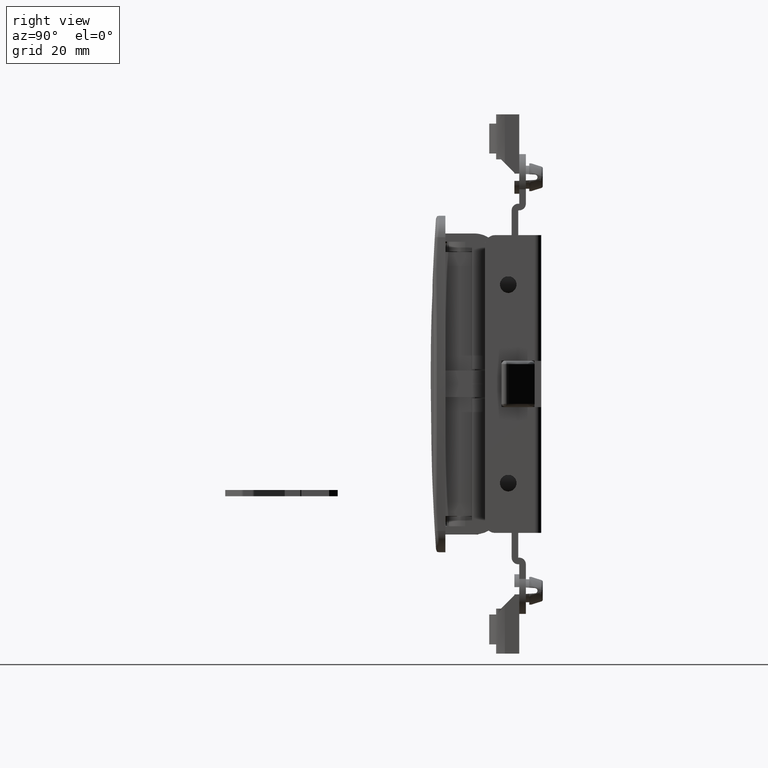
[diagram: clean part render]
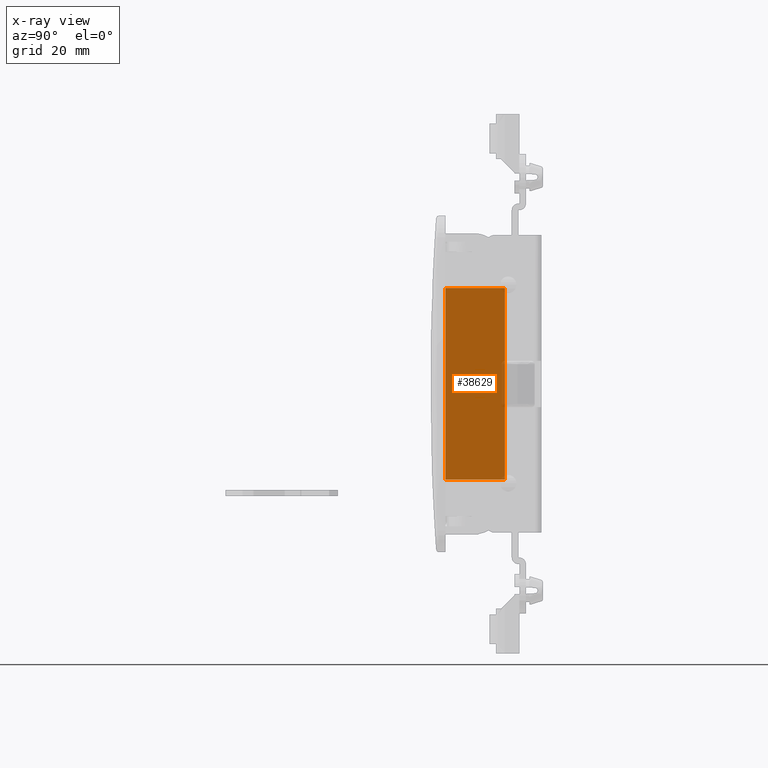
[diagram: x-ray — body ghosted, one internal face saturated and labeled with its STEP entity id]
A machine part, right view, then the same camera in x-ray: the body is ghosted and one INTERNAL B-rep face — a face not visible from any outside direction — is saturated and labeled: STEP entity #38629.
In plain terms, the highlighted face is a freeform B-spline surface patch.
Its self-contained STEP definition (entity closure, byte-faithful):
#36726=CARTESIAN_POINT('',(35.000999999999998,-11.0,-29.0));
#36727=VERTEX_POINT('',#36726);
#36781=CARTESIAN_POINT('',(35.000999999999998,-29.0,-29.0));
#36782=VERTEX_POINT('',#36781);
#36820=CARTESIAN_POINT('',(35.000999999999998,-29.0,-29.0));
#36821=CARTESIAN_POINT('',(35.000999999999998,-11.0,-29.0));
#36822=QUASI_UNIFORM_CURVE('',1,(#36820,#36821),.UNSPECIFIED.,.F.,.U.);
#36823=EDGE_CURVE('',#36782,#36727,#36822,.T.);
#36928=CARTESIAN_POINT('',(35.000999999999998,-11.0,29.0));
#36929=VERTEX_POINT('',#36928);
#36981=CARTESIAN_POINT('',(35.000999999999998,-29.0,29.0));
#36982=VERTEX_POINT('',#36981);
#37014=CARTESIAN_POINT('',(35.000999999999998,-11.0,29.0));
#37015=CARTESIAN_POINT('',(35.000999999999998,-29.0,29.0));
#37016=QUASI_UNIFORM_CURVE('',1,(#37014,#37015),.UNSPECIFIED.,.F.,.U.);
#37017=EDGE_CURVE('',#36929,#36982,#37016,.T.);
#38605=CARTESIAN_POINT('',(35.000999999999998,-11.0,-29.0));
#38606=CARTESIAN_POINT('',(35.000999999999998,-11.0,29.0));
#38607=QUASI_UNIFORM_CURVE('',1,(#38605,#38606),.UNSPECIFIED.,.F.,.U.);
#38608=EDGE_CURVE('',#36727,#36929,#38607,.T.);
#38614=CARTESIAN_POINT('',(35.000999999999998,-29.899099965112509,31.897099887584751));
#38615=CARTESIAN_POINT('',(35.000999999999998,-29.899099965112509,-31.897101443265981));
#38616=CARTESIAN_POINT('',(35.000999999999998,-10.100899552089871,31.897099887584751));
#38617=CARTESIAN_POINT('',(35.000999999999998,-10.100899552089871,-31.897101443265981));
#38618=B_SPLINE_SURFACE_WITH_KNOTS('',1,1,((#38614,#38616),(#38615,#38617)),.UNSPECIFIED.,.F.,.F.,.U.,(2,2),(2,2),(0.0,63.794201330850733),(0.0,19.798200413022641),.UNSPECIFIED.);
#38619=ORIENTED_EDGE('',*,*,#38608,.T.);
#38620=ORIENTED_EDGE('',*,*,#37017,.T.);
#38621=CARTESIAN_POINT('',(35.000999999999998,-29.0,-29.0));
#38622=CARTESIAN_POINT('',(35.000999999999998,-29.0,29.0));
#38623=QUASI_UNIFORM_CURVE('',1,(#38621,#38622),.UNSPECIFIED.,.F.,.U.);
#38624=EDGE_CURVE('',#36782,#36982,#38623,.T.);
#38625=ORIENTED_EDGE('',*,*,#38624,.F.);
#38626=ORIENTED_EDGE('',*,*,#36823,.T.);
#38627=EDGE_LOOP('',(#38619,#38620,#38625,#38626));
#38628=FACE_OUTER_BOUND('',#38627,.T.);
#38629=ADVANCED_FACE('',(#38628),#38618,.T.);